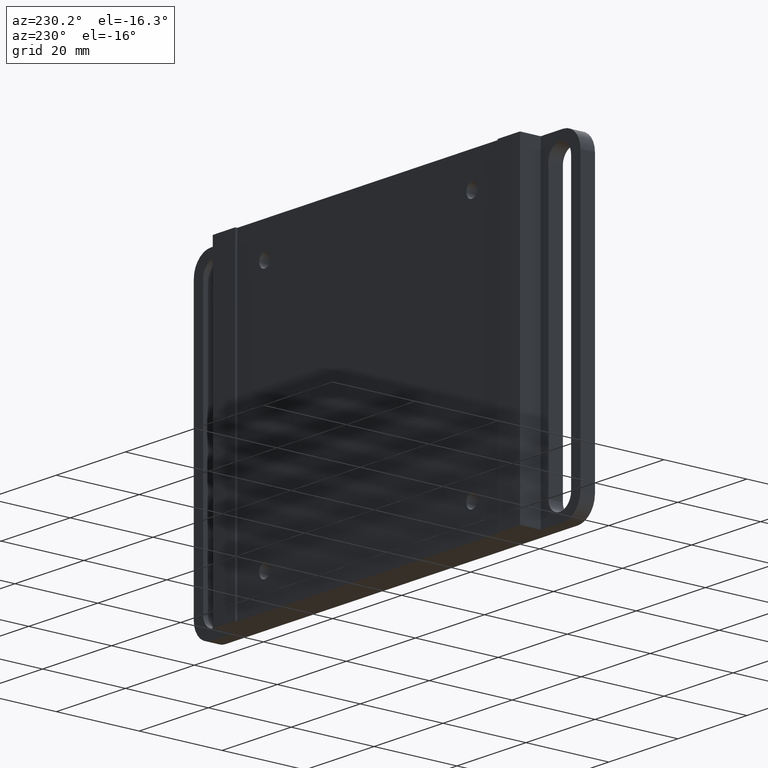
[diagram: clean part render]
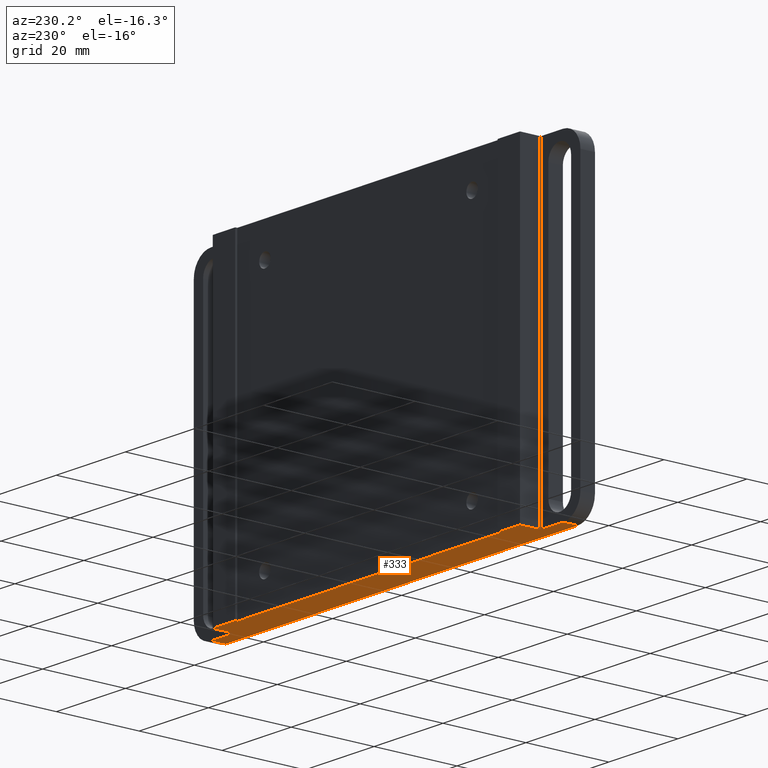
[diagram: same view with one face highlighted and labeled with its STEP entity id]
A machine part, auxiliary view. The second image highlights one B-rep face of the part: STEP entity #333.
In plain terms, the highlighted planar face has unit normal (-0, 0, 1).
Its self-contained STEP definition (entity closure, byte-faithful):
#2 = CARTESIAN_POINT ( 'NONE',  ( 38.00000000000000000, 10.00000000000000000, -38.00000000000000000 ) ) ;
#64 = CARTESIAN_POINT ( 'NONE',  ( -38.00000000000000711, 8.500000000000021316, -38.00000000000000000 ) ) ;
#68 = EDGE_CURVE ( 'NONE', #1016, #781, #385, .T. ) ;
#83 = LINE ( 'NONE', #409, #913 ) ;
#96 = VERTEX_POINT ( 'NONE', #489 ) ;
#130 = LINE ( 'NONE', #279, #431 ) ;
#158 = CARTESIAN_POINT ( 'NONE',  ( 51.00000000000000711, 0.000000000000000000, -38.00000000000000000 ) ) ;
#174 = VECTOR ( 'NONE', #993, 1000.000000000000000 ) ;
#177 = DIRECTION ( 'NONE',  ( 0.000000000000000000, 1.000000000000000000, 0.000000000000000000 ) ) ;
#190 = CARTESIAN_POINT ( 'NONE',  ( -44.50000000000000000, 8.500000000000023093, -38.00000000000000000 ) ) ;
#202 = EDGE_CURVE ( 'NONE', #327, #288, #83, .T. ) ;
#209 = CARTESIAN_POINT ( 'NONE',  ( 44.50000000000000000, 3.500000000000000000, -38.00000000000000000 ) ) ;
#216 = VECTOR ( 'NONE', #256, 1000.000000000000000 ) ;
#227 = ORIENTED_EDGE ( 'NONE', *, *, #68, .F. ) ;
#238 = EDGE_CURVE ( 'NONE', #529, #808, #130, .T. ) ;
#251 = DIRECTION ( 'NONE',  ( -1.000000000000000000, 1.131341397376178325E-16, 0.000000000000000000 ) ) ;
#252 = ORIENTED_EDGE ( 'NONE', *, *, #937, .F. ) ;
#254 = CARTESIAN_POINT ( 'NONE',  ( -51.00000000000000711, 3.499999999999999112, -38.00000000000000000 ) ) ;
#256 = DIRECTION ( 'NONE',  ( -1.000000000000000000, 2.668805347656626678E-16, -0.000000000000000000 ) ) ;
#259 = DIRECTION ( 'NONE',  ( -0.000000000000000000, 1.000000000000000000, -0.000000000000000000 ) ) ;
#279 = CARTESIAN_POINT ( 'NONE',  ( 51.00000000000000711, 0.000000000000000000, -38.00000000000000000 ) ) ;
#288 = VERTEX_POINT ( 'NONE', #849 ) ;
#289 = VECTOR ( 'NONE', #853, 1000.000000000000000 ) ;
#292 = VERTEX_POINT ( 'NONE', #190 ) ;
#300 = ORIENTED_EDGE ( 'NONE', *, *, #877, .F. ) ;
#310 = DIRECTION ( 'NONE',  ( -1.000000000000000000, 0.000000000000000000, 0.000000000000000000 ) ) ;
#327 = VERTEX_POINT ( 'NONE', #209 ) ;
#328 = CARTESIAN_POINT ( 'NONE',  ( 38.00000000000000000, 8.500000000000000000, -38.00000000000000000 ) ) ;
#333 = ADVANCED_FACE ( 'NONE', ( #942 ), #675, .F. ) ;
#348 = DIRECTION ( 'NONE',  ( 0.000000000000000000, -1.000000000000000000, 0.000000000000000000 ) ) ;
#356 = EDGE_CURVE ( 'NONE', #781, #798, #594, .T. ) ;
#367 = VECTOR ( 'NONE', #705, 1000.000000000000000 ) ;
#385 = LINE ( 'NONE', #702, #464 ) ;
#409 = CARTESIAN_POINT ( 'NONE',  ( 44.50000000000000000, 3.500000000000000000, -38.00000000000000000 ) ) ;
#431 = VECTOR ( 'NONE', #935, 1000.000000000000000 ) ;
#443 = VERTEX_POINT ( 'NONE', #1035 ) ;
#452 = VERTEX_POINT ( 'NONE', #630 ) ;
#464 = VECTOR ( 'NONE', #310, 1000.000000000000000 ) ;
#468 = CARTESIAN_POINT ( 'NONE',  ( 56.00000000000000000, 3.499999999999998668, -38.00000000000000000 ) ) ;
#476 = DIRECTION ( 'NONE',  ( -1.000000000000000000, -1.131341397376178325E-16, 0.000000000000000000 ) ) ;
#478 = ORIENTED_EDGE ( 'NONE', *, *, #922, .F. ) ;
#482 = LINE ( 'NONE', #577, #174 ) ;
#485 = ORIENTED_EDGE ( 'NONE', *, *, #852, .F. ) ;
#489 = CARTESIAN_POINT ( 'NONE',  ( 38.00000000000000000, 8.500000000000000000, -38.00000000000000000 ) ) ;
#500 = CARTESIAN_POINT ( 'NONE',  ( -44.50000000000000000, 9.999999999999998224, -38.00000000000000000 ) ) ;
#507 = CARTESIAN_POINT ( 'NONE',  ( 0.000000000000000000, 0.000000000000000000, -38.00000000000000000 ) ) ;
#523 = VERTEX_POINT ( 'NONE', #254 ) ;
#529 = VERTEX_POINT ( 'NONE', #651 ) ;
#535 = EDGE_CURVE ( 'NONE', #798, #292, #482, .T. ) ;
#568 = CARTESIAN_POINT ( 'NONE',  ( -51.00000000000000711, 0.000000000000000000, -38.00000000000000000 ) ) ;
#569 = EDGE_CURVE ( 'NONE', #443, #523, #636, .T. ) ;
#577 = CARTESIAN_POINT ( 'NONE',  ( -44.50000000000000000, 8.500000000000023093, -38.00000000000000000 ) ) ;
#593 = VECTOR ( 'NONE', #251, 1000.000000000000000 ) ;
#594 = LINE ( 'NONE', #932, #289 ) ;
#595 = CARTESIAN_POINT ( 'NONE',  ( 38.00000000000000711, 8.000000000000001776, -38.00000000000000000 ) ) ;
#608 = ORIENTED_EDGE ( 'NONE', *, *, #569, .T. ) ;
#629 = CARTESIAN_POINT ( 'NONE',  ( -38.00000000000000711, 8.000000000000001776, -38.00000000000000000 ) ) ;
#630 = CARTESIAN_POINT ( 'NONE',  ( -44.50000000000000000, 3.500000000000000000, -38.00000000000000000 ) ) ;
#636 = LINE ( 'NONE', #568, #752 ) ;
#637 = ORIENTED_EDGE ( 'NONE', *, *, #202, .F. ) ;
#649 = ORIENTED_EDGE ( 'NONE', *, *, #966, .F. ) ;
#651 = CARTESIAN_POINT ( 'NONE',  ( 51.00000000000000711, 3.499999999999999112, -38.00000000000000000 ) ) ;
#675 = PLANE ( 'NONE',  #734 ) ;
#702 = CARTESIAN_POINT ( 'NONE',  ( 38.00000000000000711, 8.000000000000001776, -38.00000000000000000 ) ) ;
#705 = DIRECTION ( 'NONE',  ( 3.469446951953616950E-15, -1.000000000000000000, 0.000000000000000000 ) ) ;
#710 = VECTOR ( 'NONE', #476, 1000.000000000000000 ) ;
#722 = EDGE_CURVE ( 'NONE', #443, #808, #964, .T. ) ;
#724 = LINE ( 'NONE', #2, #367 ) ;
#729 = LINE ( 'NONE', #468, #593 ) ;
#734 = AXIS2_PLACEMENT_3D ( 'NONE', #507, #779, #1009 ) ;
#752 = VECTOR ( 'NONE', #259, 1000.000000000000000 ) ;
#779 = DIRECTION ( 'NONE',  ( -0.000000000000000000, 0.000000000000000000, 1.000000000000000000 ) ) ;
#781 = VERTEX_POINT ( 'NONE', #629 ) ;
#796 = CARTESIAN_POINT ( 'NONE',  ( -44.50000000000000000, 3.500000000000000000, -38.00000000000000000 ) ) ;
#798 = VERTEX_POINT ( 'NONE', #64 ) ;
#803 = LINE ( 'NONE', #328, #216 ) ;
#806 = VECTOR ( 'NONE', #1003, 1000.000000000000000 ) ;
#808 = VERTEX_POINT ( 'NONE', #158 ) ;
#810 = ORIENTED_EDGE ( 'NONE', *, *, #722, .F. ) ;
#811 = CARTESIAN_POINT ( 'NONE',  ( -56.00000000000000000, 0.000000000000000000, -38.00000000000000000 ) ) ;
#849 = CARTESIAN_POINT ( 'NONE',  ( 44.50000000000000000, 8.500000000000000000, -38.00000000000000000 ) ) ;
#852 = EDGE_CURVE ( 'NONE', #292, #452, #912, .T. ) ;
#853 = DIRECTION ( 'NONE',  ( 3.469446951953616950E-15, 1.000000000000000000, 0.000000000000000000 ) ) ;
#876 = VECTOR ( 'NONE', #348, 1000.000000000000000 ) ;
#877 = EDGE_CURVE ( 'NONE', #452, #523, #1055, .T. ) ;
#886 = EDGE_LOOP ( 'NONE', ( #252, #637, #649, #925, #810, #608, #300, #485, #948, #1054, #227, #478 ) ) ;
#912 = LINE ( 'NONE', #500, #876 ) ;
#913 = VECTOR ( 'NONE', #177, 1000.000000000000000 ) ;
#922 = EDGE_CURVE ( 'NONE', #96, #1016, #724, .T. ) ;
#925 = ORIENTED_EDGE ( 'NONE', *, *, #238, .T. ) ;
#932 = CARTESIAN_POINT ( 'NONE',  ( -38.00000000000000711, 8.000000000000001776, -38.00000000000000000 ) ) ;
#935 = DIRECTION ( 'NONE',  ( -0.000000000000000000, -1.000000000000000000, -0.000000000000000000 ) ) ;
#937 = EDGE_CURVE ( 'NONE', #288, #96, #803, .T. ) ;
#942 = FACE_OUTER_BOUND ( 'NONE', #886, .T. ) ;
#948 = ORIENTED_EDGE ( 'NONE', *, *, #535, .F. ) ;
#964 = LINE ( 'NONE', #811, #806 ) ;
#966 = EDGE_CURVE ( 'NONE', #529, #327, #729, .T. ) ;
#993 = DIRECTION ( 'NONE',  ( -1.000000000000000000, 2.668805347656626678E-16, -0.000000000000000000 ) ) ;
#1003 = DIRECTION ( 'NONE',  ( 1.000000000000000000, 0.000000000000000000, 0.000000000000000000 ) ) ;
#1009 = DIRECTION ( 'NONE',  ( 1.000000000000000000, 0.000000000000000000, 0.000000000000000000 ) ) ;
#1016 = VERTEX_POINT ( 'NONE', #595 ) ;
#1035 = CARTESIAN_POINT ( 'NONE',  ( -51.00000000000000711, 0.000000000000000000, -38.00000000000000000 ) ) ;
#1054 = ORIENTED_EDGE ( 'NONE', *, *, #356, .F. ) ;
#1055 = LINE ( 'NONE', #796, #710 ) ;